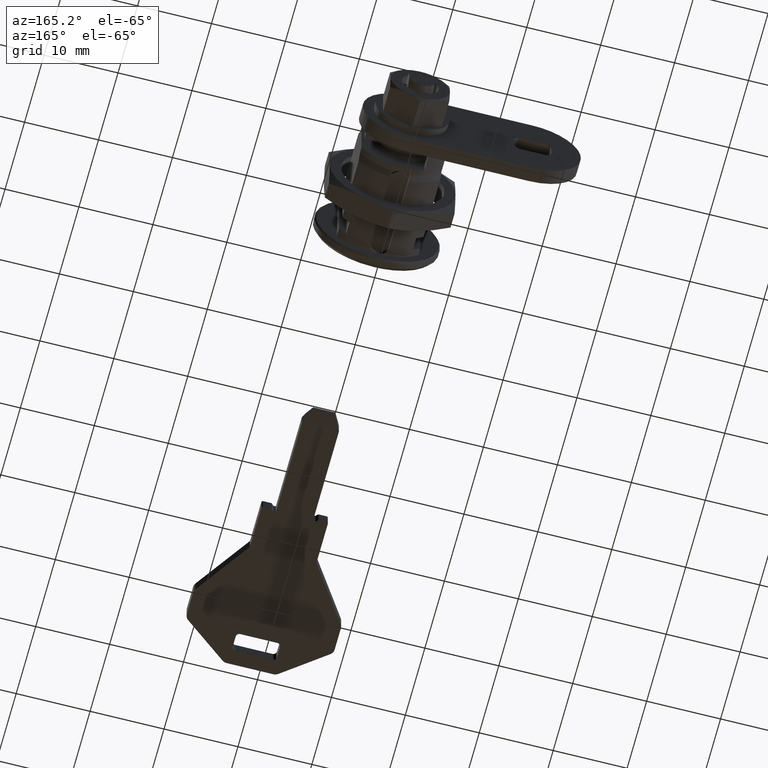
[diagram: clean part render]
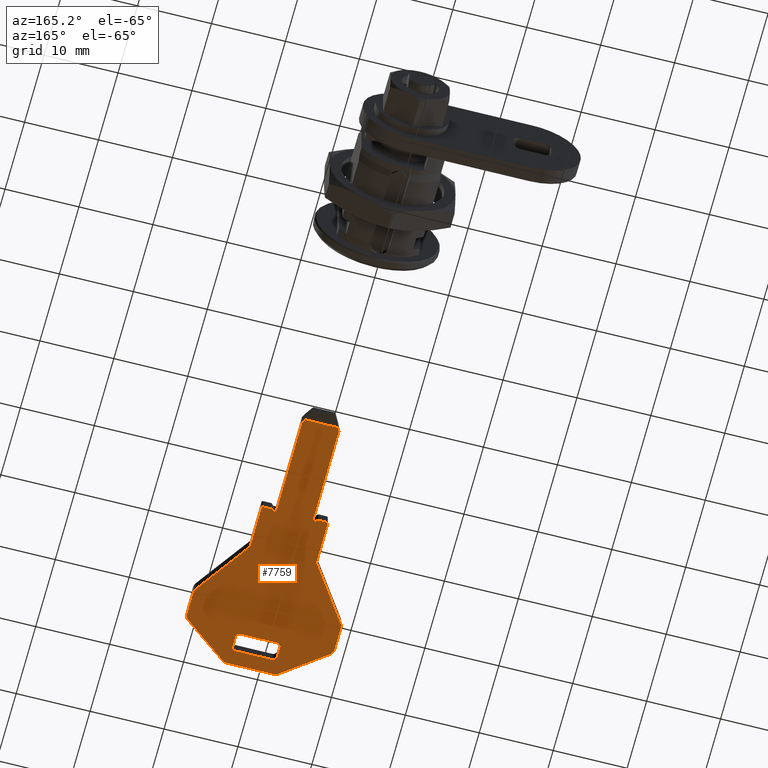
[diagram: same view with one face highlighted and labeled with its STEP entity id]
A machine part, auxiliary view. The second image highlights one B-rep face of the part: STEP entity #7759.
In plain terms, the highlighted face is a freeform B-spline surface patch.
Its self-contained STEP definition (entity closure, byte-faithful):
#6435=CARTESIAN_POINT('',(-26.804951252770600,-2.344554117826425,-0.899999999849697));
#6436=VERTEX_POINT('',#6435);
#6442=CARTESIAN_POINT('',(-26.804951253183500,2.114778544594520,-0.900000000000000));
#6443=VERTEX_POINT('',#6442);
#6444=CARTESIAN_POINT('',(-26.804951253183500,2.114778544594520,-0.900000000000000));
#6445=CARTESIAN_POINT('',(-26.804951252770600,-2.344554117826425,-0.899999999849697));
#6446=QUASI_UNIFORM_CURVE('',1,(#6444,#6445),.UNSPECIFIED.,.F.,.U.);
#6447=EDGE_CURVE('',#6443,#6436,#6446,.T.);
#6478=CARTESIAN_POINT('',(-58.872900445619287,2.385112213383990,-0.899999999859347));
#6479=VERTEX_POINT('',#6478);
#6502=CARTESIAN_POINT('',(-59.372900445619301,2.885112213383990,-0.899999999859347));
#6503=VERTEX_POINT('',#6502);
#6509=CARTESIAN_POINT('',(-58.872900445619287,2.385112213383990,-0.899999999859347));
#6510=CARTESIAN_POINT('',(-58.872900445619294,2.885112213383990,-0.899999999859347));
#6511=CARTESIAN_POINT('',(-59.372900445619301,2.885112213383990,-0.899999999859347));
#6519=(BOUNDED_CURVE()B_SPLINE_CURVE(2,(#6509,#6510,#6511),.UNSPECIFIED.,.F.,.U.)CURVE()GEOMETRIC_REPRESENTATION_ITEM()QUASI_UNIFORM_CURVE()RATIONAL_B_SPLINE_CURVE((1.0,0.707106781186548,1.0))REPRESENTATION_ITEM(''));
#6520=EDGE_CURVE('',#6479,#6503,#6519,.T.);
#6530=CARTESIAN_POINT('',(-58.872900445619997,-2.614887786616010,-0.899999999859347));
#6531=VERTEX_POINT('',#6530);
#6545=CARTESIAN_POINT('',(-58.872900445619997,-2.614887786616010,-0.899999999859347));
#6546=CARTESIAN_POINT('',(-58.872900445619287,2.385112213383990,-0.899999999859347));
#6547=QUASI_UNIFORM_CURVE('',1,(#6545,#6546),.UNSPECIFIED.,.F.,.U.);
#6548=EDGE_CURVE('',#6531,#6479,#6547,.T.);
#6567=CARTESIAN_POINT('',(-59.372900445619997,-3.114887786616010,-0.899999999859347));
#6568=VERTEX_POINT('',#6567);
#6590=CARTESIAN_POINT('',(-59.372900445619997,-3.114887786616010,-0.899999999859347));
#6591=CARTESIAN_POINT('',(-58.872900445619997,-3.114887786616011,-0.899999999859347));
#6592=CARTESIAN_POINT('',(-58.872900445619997,-2.614887786616010,-0.899999999859347));
#6600=(BOUNDED_CURVE()B_SPLINE_CURVE(2,(#6590,#6591,#6592),.UNSPECIFIED.,.F.,.U.)CURVE()GEOMETRIC_REPRESENTATION_ITEM()QUASI_UNIFORM_CURVE()RATIONAL_B_SPLINE_CURVE((1.0,0.707106781186548,1.0))REPRESENTATION_ITEM(''));
#6601=EDGE_CURVE('',#6568,#6531,#6600,.T.);
#6611=CARTESIAN_POINT('',(-60.872900445619997,-3.114887786616010,-0.899999999859347));
#6612=VERTEX_POINT('',#6611);
#6626=CARTESIAN_POINT('',(-60.872900445619997,-3.114887786616010,-0.899999999859347));
#6627=CARTESIAN_POINT('',(-59.372900445619997,-3.114887786616010,-0.899999999859347));
#6628=QUASI_UNIFORM_CURVE('',1,(#6626,#6627),.UNSPECIFIED.,.F.,.U.);
#6629=EDGE_CURVE('',#6612,#6568,#6628,.T.);
#6648=CARTESIAN_POINT('',(-61.372900445619997,-2.614887786615895,-0.899999999859347));
#6649=VERTEX_POINT('',#6648);
#6673=CARTESIAN_POINT('',(-61.372900445619997,-2.614887786616010,-0.899999999859347));
#6674=CARTESIAN_POINT('',(-61.372900445619997,-3.114887786616011,-0.899999999859347));
#6675=CARTESIAN_POINT('',(-60.872900445619997,-3.114887786616010,-0.899999999859347));
#6683=(BOUNDED_CURVE()B_SPLINE_CURVE(2,(#6673,#6674,#6675),.UNSPECIFIED.,.F.,.U.)CURVE()GEOMETRIC_REPRESENTATION_ITEM()QUASI_UNIFORM_CURVE()RATIONAL_B_SPLINE_CURVE((1.0,0.707106781186548,1.0))REPRESENTATION_ITEM(''));
#6684=EDGE_CURVE('',#6649,#6612,#6683,.T.);
#6694=CARTESIAN_POINT('',(-61.372900445619301,2.385112213383990,-0.899999999859347));
#6695=VERTEX_POINT('',#6694);
#6709=CARTESIAN_POINT('',(-61.372900445619301,2.385112213383990,-0.899999999859347));
#6710=CARTESIAN_POINT('',(-61.372900445619997,-2.614887786615895,-0.899999999859347));
#6711=QUASI_UNIFORM_CURVE('',1,(#6709,#6710),.UNSPECIFIED.,.F.,.U.);
#6712=EDGE_CURVE('',#6695,#6649,#6711,.T.);
#6731=CARTESIAN_POINT('',(-60.872900445619301,2.885112213383990,-0.899999999859347));
#6732=VERTEX_POINT('',#6731);
#6754=CARTESIAN_POINT('',(-60.872900445619301,2.885112213383990,-0.899999999859347));
#6755=CARTESIAN_POINT('',(-61.372900445619294,2.885112213383990,-0.899999999859347));
#6756=CARTESIAN_POINT('',(-61.372900445619301,2.385112213383990,-0.899999999859347));
#6764=(BOUNDED_CURVE()B_SPLINE_CURVE(2,(#6754,#6755,#6756),.UNSPECIFIED.,.F.,.U.)CURVE()GEOMETRIC_REPRESENTATION_ITEM()QUASI_UNIFORM_CURVE()RATIONAL_B_SPLINE_CURVE((1.0,0.707106781186548,1.0))REPRESENTATION_ITEM(''));
#6765=EDGE_CURVE('',#6732,#6695,#6764,.T.);
#6782=CARTESIAN_POINT('',(-59.372900445619301,2.885112213383990,-0.899999999859347));
#6783=CARTESIAN_POINT('',(-60.872900445619301,2.885112213383990,-0.899999999859347));
#6784=QUASI_UNIFORM_CURVE('',1,(#6782,#6783),.UNSPECIFIED.,.F.,.U.);
#6785=EDGE_CURVE('',#6503,#6732,#6784,.T.);
#6804=CARTESIAN_POINT('',(-40.372900445619052,4.185112213384000,-0.899999999849688));
#6805=VERTEX_POINT('',#6804);
#6806=CARTESIAN_POINT('',(-40.572900445619098,4.385112213384115,-0.899999999849688));
#6807=VERTEX_POINT('',#6806);
#6808=CARTESIAN_POINT('',(-40.372900445619102,4.185112213384000,-0.899999999849688));
#6809=CARTESIAN_POINT('',(-40.372900445619067,4.267954925858652,-0.899999999849688));
#6810=CARTESIAN_POINT('',(-40.431479089381753,4.326533569621384,-0.899999999849688));
#6811=CARTESIAN_POINT('',(-40.490057733144447,4.385112213384115,-0.899999999849688));
#6812=CARTESIAN_POINT('',(-40.572900445619098,4.385112213384115,-0.899999999849688));
#6820=(BOUNDED_CURVE()B_SPLINE_CURVE(2,(#6808,#6809,#6810,#6811,#6812),.UNSPECIFIED.,.F.,.U.)B_SPLINE_CURVE_WITH_KNOTS((3,2,3),(0.0,0.500000000000000,1.0),.UNSPECIFIED.)CURVE()GEOMETRIC_REPRESENTATION_ITEM()RATIONAL_B_SPLINE_CURVE((1.0,0.923879532511232,1.0,0.923879532511232,1.0))REPRESENTATION_ITEM(''));
#6821=EDGE_CURVE('',#6805,#6807,#6820,.T.);
#6860=CARTESIAN_POINT('',(-40.372900445620097,3.035112213384395,-0.899999999849688));
#6861=VERTEX_POINT('',#6860);
#6862=CARTESIAN_POINT('',(-40.372900445620097,3.035112213384395,-0.899999999849688));
#6863=CARTESIAN_POINT('',(-40.372900445619052,4.185112213384000,-0.899999999849688));
#6864=QUASI_UNIFORM_CURVE('',1,(#6862,#6863),.UNSPECIFIED.,.F.,.U.);
#6865=EDGE_CURVE('',#6861,#6805,#6864,.T.);
#6888=CARTESIAN_POINT('',(-40.672900445620002,2.735112213384015,-0.899999999849688));
#6889=VERTEX_POINT('',#6888);
#6890=CARTESIAN_POINT('',(-40.672900445620002,2.735112213384015,-0.899999999849688));
#6891=CARTESIAN_POINT('',(-40.372900445620097,3.035112213384395,-0.899999999849688));
#6892=QUASI_UNIFORM_CURVE('',1,(#6890,#6891),.UNSPECIFIED.,.F.,.U.);
#6893=EDGE_CURVE('',#6889,#6861,#6892,.T.);
#6916=CARTESIAN_POINT('',(-40.672900445620002,2.385112213383990,-0.899999999849688));
#6917=VERTEX_POINT('',#6916);
#6918=CARTESIAN_POINT('',(-40.672900445620002,2.385112213383990,-0.899999999849688));
#6919=CARTESIAN_POINT('',(-40.672900445620002,2.735112213384015,-0.899999999849688));
#6920=QUASI_UNIFORM_CURVE('',1,(#6918,#6919),.UNSPECIFIED.,.F.,.U.);
#6921=EDGE_CURVE('',#6917,#6889,#6920,.T.);
#6944=CARTESIAN_POINT('',(-27.335510951127748,2.385112213382910,-0.899999999849688));
#6945=VERTEX_POINT('',#6944);
#6946=CARTESIAN_POINT('',(-27.335510951127748,2.385112213382910,-0.899999999849688));
#6947=CARTESIAN_POINT('',(-40.672900445620002,2.385112213383990,-0.899999999849688));
#6948=QUASI_UNIFORM_CURVE('',1,(#6946,#6947),.UNSPECIFIED.,.F.,.U.);
#6949=EDGE_CURVE('',#6945,#6917,#6948,.T.);
#6972=CARTESIAN_POINT('',(-40.672900445620002,-2.614887786615895,-0.899999999849688));
#6973=VERTEX_POINT('',#6972);
#6974=CARTESIAN_POINT('',(-27.335510951130050,-2.614887786616010,-0.899999999849688));
#6975=VERTEX_POINT('',#6974);
#6976=CARTESIAN_POINT('',(-40.672900445620002,-2.614887786615895,-0.899999999849688));
#6977=CARTESIAN_POINT('',(-27.335510951130050,-2.614887786616010,-0.899999999849688));
#6978=QUASI_UNIFORM_CURVE('',1,(#6976,#6977),.UNSPECIFIED.,.F.,.U.);
#6979=EDGE_CURVE('',#6973,#6975,#6978,.T.);
#7008=CARTESIAN_POINT('',(-40.672900445620002,-2.964887786616005,-0.899999999849688));
#7009=VERTEX_POINT('',#7008);
#7010=CARTESIAN_POINT('',(-40.672900445620002,-2.964887786616005,-0.899999999849688));
#7011=CARTESIAN_POINT('',(-40.672900445620002,-2.614887786615895,-0.899999999849688));
#7012=QUASI_UNIFORM_CURVE('',1,(#7010,#7011),.UNSPECIFIED.,.F.,.U.);
#7013=EDGE_CURVE('',#7009,#6973,#7012,.T.);
#7036=CARTESIAN_POINT('',(-40.372900445620047,-3.264887786616300,-0.899999999849688));
#7037=VERTEX_POINT('',#7036);
#7038=CARTESIAN_POINT('',(-40.372900445620047,-3.264887786616300,-0.899999999849688));
#7039=CARTESIAN_POINT('',(-40.672900445620002,-2.964887786616005,-0.899999999849688));
#7040=QUASI_UNIFORM_CURVE('',1,(#7038,#7039),.UNSPECIFIED.,.F.,.U.);
#7041=EDGE_CURVE('',#7037,#7009,#7040,.T.);
#7064=CARTESIAN_POINT('',(-40.372900445620203,-4.414887786615990,-0.899999999849688));
#7065=VERTEX_POINT('',#7064);
#7066=CARTESIAN_POINT('',(-40.372900445620203,-4.414887786615990,-0.899999999849688));
#7067=CARTESIAN_POINT('',(-40.372900445620047,-3.264887786616300,-0.899999999849688));
#7068=QUASI_UNIFORM_CURVE('',1,(#7066,#7067),.UNSPECIFIED.,.F.,.U.);
#7069=EDGE_CURVE('',#7065,#7037,#7068,.T.);
#7101=CARTESIAN_POINT('',(-40.572900445620249,-4.614887786616010,-0.899999999849688));
#7102=VERTEX_POINT('',#7101);
#7103=CARTESIAN_POINT('',(-40.572900445620249,-4.614887786615989,-0.899999999849688));
#7104=CARTESIAN_POINT('',(-40.490057733145619,-4.614887786616010,-0.899999999849688));
#7105=CARTESIAN_POINT('',(-40.431479089382911,-4.556309142853317,-0.899999999849688));
#7106=CARTESIAN_POINT('',(-40.372900445620196,-4.497730499090623,-0.899999999849688));
#7107=CARTESIAN_POINT('',(-40.372900445620203,-4.414887786615990,-0.899999999849688));
#7115=(BOUNDED_CURVE()B_SPLINE_CURVE(2,(#7103,#7104,#7105,#7106,#7107),.UNSPECIFIED.,.F.,.U.)B_SPLINE_CURVE_WITH_KNOTS((3,2,3),(0.0,0.500000000000000,1.0),.UNSPECIFIED.)CURVE()GEOMETRIC_REPRESENTATION_ITEM()RATIONAL_B_SPLINE_CURVE((1.0,0.923879532511264,1.0,0.923879532511264,1.0))REPRESENTATION_ITEM(''));
#7116=EDGE_CURVE('',#7102,#7065,#7115,.T.);
#7149=CARTESIAN_POINT('',(-46.372900445620203,-4.614887786616010,-0.899999999849688));
#7150=VERTEX_POINT('',#7149);
#7151=CARTESIAN_POINT('',(-46.372900445620203,-4.614887786616010,-0.899999999849688));
#7152=CARTESIAN_POINT('',(-40.572900445620249,-4.614887786616010,-0.899999999849688));
#7153=QUASI_UNIFORM_CURVE('',1,(#7151,#7152),.UNSPECIFIED.,.F.,.U.);
#7154=EDGE_CURVE('',#7150,#7102,#7153,.T.);
#7177=CARTESIAN_POINT('',(-54.116961426285300,-9.938929710815751,-0.899999999849688));
#7178=VERTEX_POINT('',#7177);
#7179=CARTESIAN_POINT('',(-54.116961426285300,-9.938929710815751,-0.899999999849688));
#7180=CARTESIAN_POINT('',(-46.372900445620203,-4.614887786616010,-0.899999999849688));
#7181=QUASI_UNIFORM_CURVE('',1,(#7179,#7180),.UNSPECIFIED.,.F.,.U.);
#7182=EDGE_CURVE('',#7178,#7150,#7181,.T.);
#7214=CARTESIAN_POINT('',(-54.683490249171797,-10.114887786616000,-0.899999999849688));
#7215=VERTEX_POINT('',#7214);
#7216=CARTESIAN_POINT('',(-54.683490249171797,-10.114887786616009,-0.899999999849688));
#7217=CARTESIAN_POINT('',(-54.372900445631473,-10.114887786616011,-0.899999999849688));
#7218=CARTESIAN_POINT('',(-54.116961426285293,-9.938929710815764,-0.899999999849688));
#7226=(BOUNDED_CURVE()B_SPLINE_CURVE(2,(#7216,#7217,#7218),.UNSPECIFIED.,.F.,.U.)CURVE()GEOMETRIC_REPRESENTATION_ITEM()QUASI_UNIFORM_CURVE()RATIONAL_B_SPLINE_CURVE((1.0,0.954997885913825,1.0))REPRESENTATION_ITEM(''));
#7227=EDGE_CURVE('',#7215,#7178,#7226,.T.);
#7258=CARTESIAN_POINT('',(-57.880498948164913,-10.114887786616000,-0.899999999849688));
#7259=VERTEX_POINT('',#7258);
#7260=CARTESIAN_POINT('',(-57.880498948164913,-10.114887786616000,-0.899999999849688));
#7261=CARTESIAN_POINT('',(-54.683490249171797,-10.114887786616000,-0.899999999849688));
#7262=QUASI_UNIFORM_CURVE('',1,(#7260,#7261),.UNSPECIFIED.,.F.,.U.);
#7263=EDGE_CURVE('',#7259,#7215,#7262,.T.);
#7295=CARTESIAN_POINT('',(-58.673122937269099,-9.724598547466091,-0.899999999849688));
#7296=VERTEX_POINT('',#7295);
#7297=CARTESIAN_POINT('',(-58.673122937269163,-9.724598547466142,-0.899999999849688));
#7298=CARTESIAN_POINT('',(-58.372900445615080,-10.114887786616011,-0.899999999849688));
#7299=CARTESIAN_POINT('',(-57.880498948164913,-10.114887786616009,-0.899999999849688));
#7307=(BOUNDED_CURVE()B_SPLINE_CURVE(2,(#7297,#7298,#7299),.UNSPECIFIED.,.F.,.U.)CURVE()GEOMETRIC_REPRESENTATION_ITEM()QUASI_UNIFORM_CURVE()RATIONAL_B_SPLINE_CURVE((1.0,0.897137325288089,1.0))REPRESENTATION_ITEM(''));
#7308=EDGE_CURVE('',#7296,#7259,#7307,.T.);
#7339=CARTESIAN_POINT('',(-63.165524434724411,-3.884476600780175,-0.899999999849688));
#7340=VERTEX_POINT('',#7339);
#7341=CARTESIAN_POINT('',(-63.165524434724411,-3.884476600780175,-0.899999999849688));
#7342=CARTESIAN_POINT('',(-58.673122937269099,-9.724598547466091,-0.899999999849688));
#7343=QUASI_UNIFORM_CURVE('',1,(#7341,#7342),.UNSPECIFIED.,.F.,.U.);
#7344=EDGE_CURVE('',#7340,#7296,#7343,.T.);
#7376=CARTESIAN_POINT('',(-63.372900445620097,-3.274765839930010,-0.899999999849688));
#7377=VERTEX_POINT('',#7376);
#7378=CARTESIAN_POINT('',(-63.372900445620090,-3.274765839930100,-0.899999999849688));
#7379=CARTESIAN_POINT('',(-63.372900445620097,-3.614887786616040,-0.899999999849688));
#7380=CARTESIAN_POINT('',(-63.165524434724411,-3.884476600780172,-0.899999999849688));
#7388=(BOUNDED_CURVE()B_SPLINE_CURVE(2,(#7378,#7379,#7380),.UNSPECIFIED.,.F.,.U.)CURVE()GEOMETRIC_REPRESENTATION_ITEM()QUASI_UNIFORM_CURVE()RATIONAL_B_SPLINE_CURVE((1.0,0.946737553154069,1.0))REPRESENTATION_ITEM(''));
#7389=EDGE_CURVE('',#7377,#7340,#7388,.T.);
#7420=CARTESIAN_POINT('',(-63.372900445619202,3.044990266698195,-0.899999999849688));
#7421=VERTEX_POINT('',#7420);
#7422=CARTESIAN_POINT('',(-63.372900445619202,3.044990266698195,-0.899999999849688));
#7423=CARTESIAN_POINT('',(-63.372900445620097,-3.274765839930010,-0.899999999849688));
#7424=QUASI_UNIFORM_CURVE('',1,(#7422,#7423),.UNSPECIFIED.,.F.,.U.);
#7425=EDGE_CURVE('',#7421,#7377,#7424,.T.);
#7457=CARTESIAN_POINT('',(-63.165524434723700,3.654701027548100,-0.899999999849688));
#7458=VERTEX_POINT('',#7457);
#7459=CARTESIAN_POINT('',(-63.165524434723658,3.654701027548070,-0.899999999849688));
#7460=CARTESIAN_POINT('',(-63.372900445619202,3.385112213383996,-0.899999999849688));
#7461=CARTESIAN_POINT('',(-63.372900445619202,3.044990266698195,-0.899999999849688));
#7469=(BOUNDED_CURVE()B_SPLINE_CURVE(2,(#7459,#7460,#7461),.UNSPECIFIED.,.F.,.U.)CURVE()GEOMETRIC_REPRESENTATION_ITEM()QUASI_UNIFORM_CURVE()RATIONAL_B_SPLINE_CURVE((1.0,0.946737553154109,1.0))REPRESENTATION_ITEM(''));
#7470=EDGE_CURVE('',#7458,#7421,#7469,.T.);
#7501=CARTESIAN_POINT('',(-58.673122937271899,9.494822974233800,-0.899999999849688));
#7502=VERTEX_POINT('',#7501);
#7503=CARTESIAN_POINT('',(-58.673122937271899,9.494822974233800,-0.899999999849688));
#7504=CARTESIAN_POINT('',(-63.165524434723700,3.654701027548100,-0.899999999849688));
#7505=QUASI_UNIFORM_CURVE('',1,(#7503,#7504),.UNSPECIFIED.,.F.,.U.);
#7506=EDGE_CURVE('',#7502,#7458,#7505,.T.);
#7538=CARTESIAN_POINT('',(-57.880498948167400,9.885112213383989,-0.899999999849688));
#7539=VERTEX_POINT('',#7538);
#7540=CARTESIAN_POINT('',(-57.880498948167400,9.885112213383989,-0.899999999849688));
#7541=CARTESIAN_POINT('',(-58.372900445617816,9.885112213383989,-0.899999999849688));
#7542=CARTESIAN_POINT('',(-58.673122937271913,9.494822974233806,-0.899999999849688));
#7550=(BOUNDED_CURVE()B_SPLINE_CURVE(2,(#7540,#7541,#7542),.UNSPECIFIED.,.F.,.U.)CURVE()GEOMETRIC_REPRESENTATION_ITEM()QUASI_UNIFORM_CURVE()RATIONAL_B_SPLINE_CURVE((1.0,0.897137325288001,1.0))REPRESENTATION_ITEM(''));
#7551=EDGE_CURVE('',#7539,#7502,#7550,.T.);
#7582=CARTESIAN_POINT('',(-54.683490249160698,9.885112213384110,-0.899999999849688));
#7583=VERTEX_POINT('',#7582);
#7584=CARTESIAN_POINT('',(-54.683490249160698,9.885112213384110,-0.899999999849688));
#7585=CARTESIAN_POINT('',(-57.880498948167400,9.885112213383989,-0.899999999849688));
#7586=QUASI_UNIFORM_CURVE('',1,(#7584,#7585),.UNSPECIFIED.,.F.,.U.);
#7587=EDGE_CURVE('',#7583,#7539,#7586,.T.);
#7619=CARTESIAN_POINT('',(-54.116961426273697,9.709154137583399,-0.899999999849688));
#7620=VERTEX_POINT('',#7619);
#7621=CARTESIAN_POINT('',(-54.116961426273647,9.709154137583473,-0.899999999849688));
#7622=CARTESIAN_POINT('',(-54.372900445620004,9.885112213384099,-0.899999999849688));
#7623=CARTESIAN_POINT('',(-54.683490249160698,9.885112213384099,-0.899999999849688));
#7631=(BOUNDED_CURVE()B_SPLINE_CURVE(2,(#7621,#7622,#7623),.UNSPECIFIED.,.F.,.U.)CURVE()GEOMETRIC_REPRESENTATION_ITEM()QUASI_UNIFORM_CURVE()RATIONAL_B_SPLINE_CURVE((1.0,0.954997885913727,1.0))REPRESENTATION_ITEM(''));
#7632=EDGE_CURVE('',#7620,#7583,#7631,.T.);
#7663=CARTESIAN_POINT('',(-46.372900445619003,4.385112213383990,-0.899999999849688));
#7664=VERTEX_POINT('',#7663);
#7665=CARTESIAN_POINT('',(-46.372900445619003,4.385112213383990,-0.899999999849688));
#7666=CARTESIAN_POINT('',(-54.116961426273697,9.709154137583399,-0.899999999849688));
#7667=QUASI_UNIFORM_CURVE('',1,(#7665,#7666),.UNSPECIFIED.,.F.,.U.);
#7668=EDGE_CURVE('',#7664,#7620,#7667,.T.);
#7691=CARTESIAN_POINT('',(-40.572900445619098,4.385112213384115,-0.899999999849688));
#7692=CARTESIAN_POINT('',(-46.372900445619003,4.385112213383990,-0.899999999849688));
#7693=QUASI_UNIFORM_CURVE('',1,(#7691,#7692),.UNSPECIFIED.,.F.,.U.);
#7694=EDGE_CURVE('',#6807,#7664,#7693,.T.);
#7706=CARTESIAN_POINT('',(-65.199471153295875,10.884111799128860,-0.899999999849706));
#7707=CARTESIAN_POINT('',(-24.978381198980710,10.884111799128860,-0.899999999849706));
#7708=CARTESIAN_POINT('',(-65.199471153295875,-11.113888266430410,-0.899999999849706));
#7709=CARTESIAN_POINT('',(-24.978381198980710,-11.113888266430410,-0.899999999849706));
#7710=B_SPLINE_SURFACE_WITH_KNOTS('',1,1,((#7706,#7708),(#7707,#7709)),.UNSPECIFIED.,.F.,.F.,.U.,(2,2),(2,2),(0.0,40.221089954315161),(0.0,21.998000065559271),.UNSPECIFIED.);
#7711=ORIENTED_EDGE('',*,*,#6447,.T.);
#7712=CARTESIAN_POINT('',(-27.335510951130050,-2.614887786616010,-0.899999999849688));
#7713=CARTESIAN_POINT('',(-26.804951252770600,-2.344554117826425,-0.899999999849697));
#7714=QUASI_UNIFORM_CURVE('',1,(#7712,#7713),.UNSPECIFIED.,.F.,.U.);
#7715=EDGE_CURVE('',#6975,#6436,#7714,.T.);
#7716=ORIENTED_EDGE('',*,*,#7715,.F.);
#7717=ORIENTED_EDGE('',*,*,#6979,.F.);
#7718=ORIENTED_EDGE('',*,*,#7013,.F.);
#7719=ORIENTED_EDGE('',*,*,#7041,.F.);
#7720=ORIENTED_EDGE('',*,*,#7069,.F.);
#7721=ORIENTED_EDGE('',*,*,#7116,.F.);
#7722=ORIENTED_EDGE('',*,*,#7154,.F.);
#7723=ORIENTED_EDGE('',*,*,#7182,.F.);
#7724=ORIENTED_EDGE('',*,*,#7227,.F.);
#7725=ORIENTED_EDGE('',*,*,#7263,.F.);
#7726=ORIENTED_EDGE('',*,*,#7308,.F.);
#7727=ORIENTED_EDGE('',*,*,#7344,.F.);
#7728=ORIENTED_EDGE('',*,*,#7389,.F.);
#7729=ORIENTED_EDGE('',*,*,#7425,.F.);
#7730=ORIENTED_EDGE('',*,*,#7470,.F.);
#7731=ORIENTED_EDGE('',*,*,#7506,.F.);
#7732=ORIENTED_EDGE('',*,*,#7551,.F.);
#7733=ORIENTED_EDGE('',*,*,#7587,.F.);
#7734=ORIENTED_EDGE('',*,*,#7632,.F.);
#7735=ORIENTED_EDGE('',*,*,#7668,.F.);
#7736=ORIENTED_EDGE('',*,*,#7694,.F.);
#7737=ORIENTED_EDGE('',*,*,#6821,.F.);
#7738=ORIENTED_EDGE('',*,*,#6865,.F.);
#7739=ORIENTED_EDGE('',*,*,#6893,.F.);
#7740=ORIENTED_EDGE('',*,*,#6921,.F.);
#7741=ORIENTED_EDGE('',*,*,#6949,.F.);
#7742=CARTESIAN_POINT('',(-26.804951253183500,2.114778544594520,-0.900000000000000));
#7743=CARTESIAN_POINT('',(-27.335510951127748,2.385112213382910,-0.899999999849688));
#7744=QUASI_UNIFORM_CURVE('',1,(#7742,#7743),.UNSPECIFIED.,.F.,.U.);
#7745=EDGE_CURVE('',#6443,#6945,#7744,.T.);
#7746=ORIENTED_EDGE('',*,*,#7745,.F.);
#7747=EDGE_LOOP('',(#7711,#7716,#7717,#7718,#7719,#7720,#7721,#7722,#7723,#7724,#7725,#7726,#7727,#7728,#7729,#7730,#7731,#7732,#7733,#7734,#7735,#7736,#7737,#7738,#7739,#7740,#7741,#7746));
#7748=FACE_OUTER_BOUND('',#7747,.T.);
#7749=ORIENTED_EDGE('',*,*,#6520,.T.);
#7750=ORIENTED_EDGE('',*,*,#6785,.T.);
#7751=ORIENTED_EDGE('',*,*,#6765,.T.);
#7752=ORIENTED_EDGE('',*,*,#6712,.T.);
#7753=ORIENTED_EDGE('',*,*,#6684,.T.);
#7754=ORIENTED_EDGE('',*,*,#6629,.T.);
#7755=ORIENTED_EDGE('',*,*,#6601,.T.);
#7756=ORIENTED_EDGE('',*,*,#6548,.T.);
#7757=EDGE_LOOP('',(#7749,#7750,#7751,#7752,#7753,#7754,#7755,#7756));
#7758=FACE_BOUND('',#7757,.T.);
#7759=ADVANCED_FACE('',(#7748,#7758),#7710,.T.);